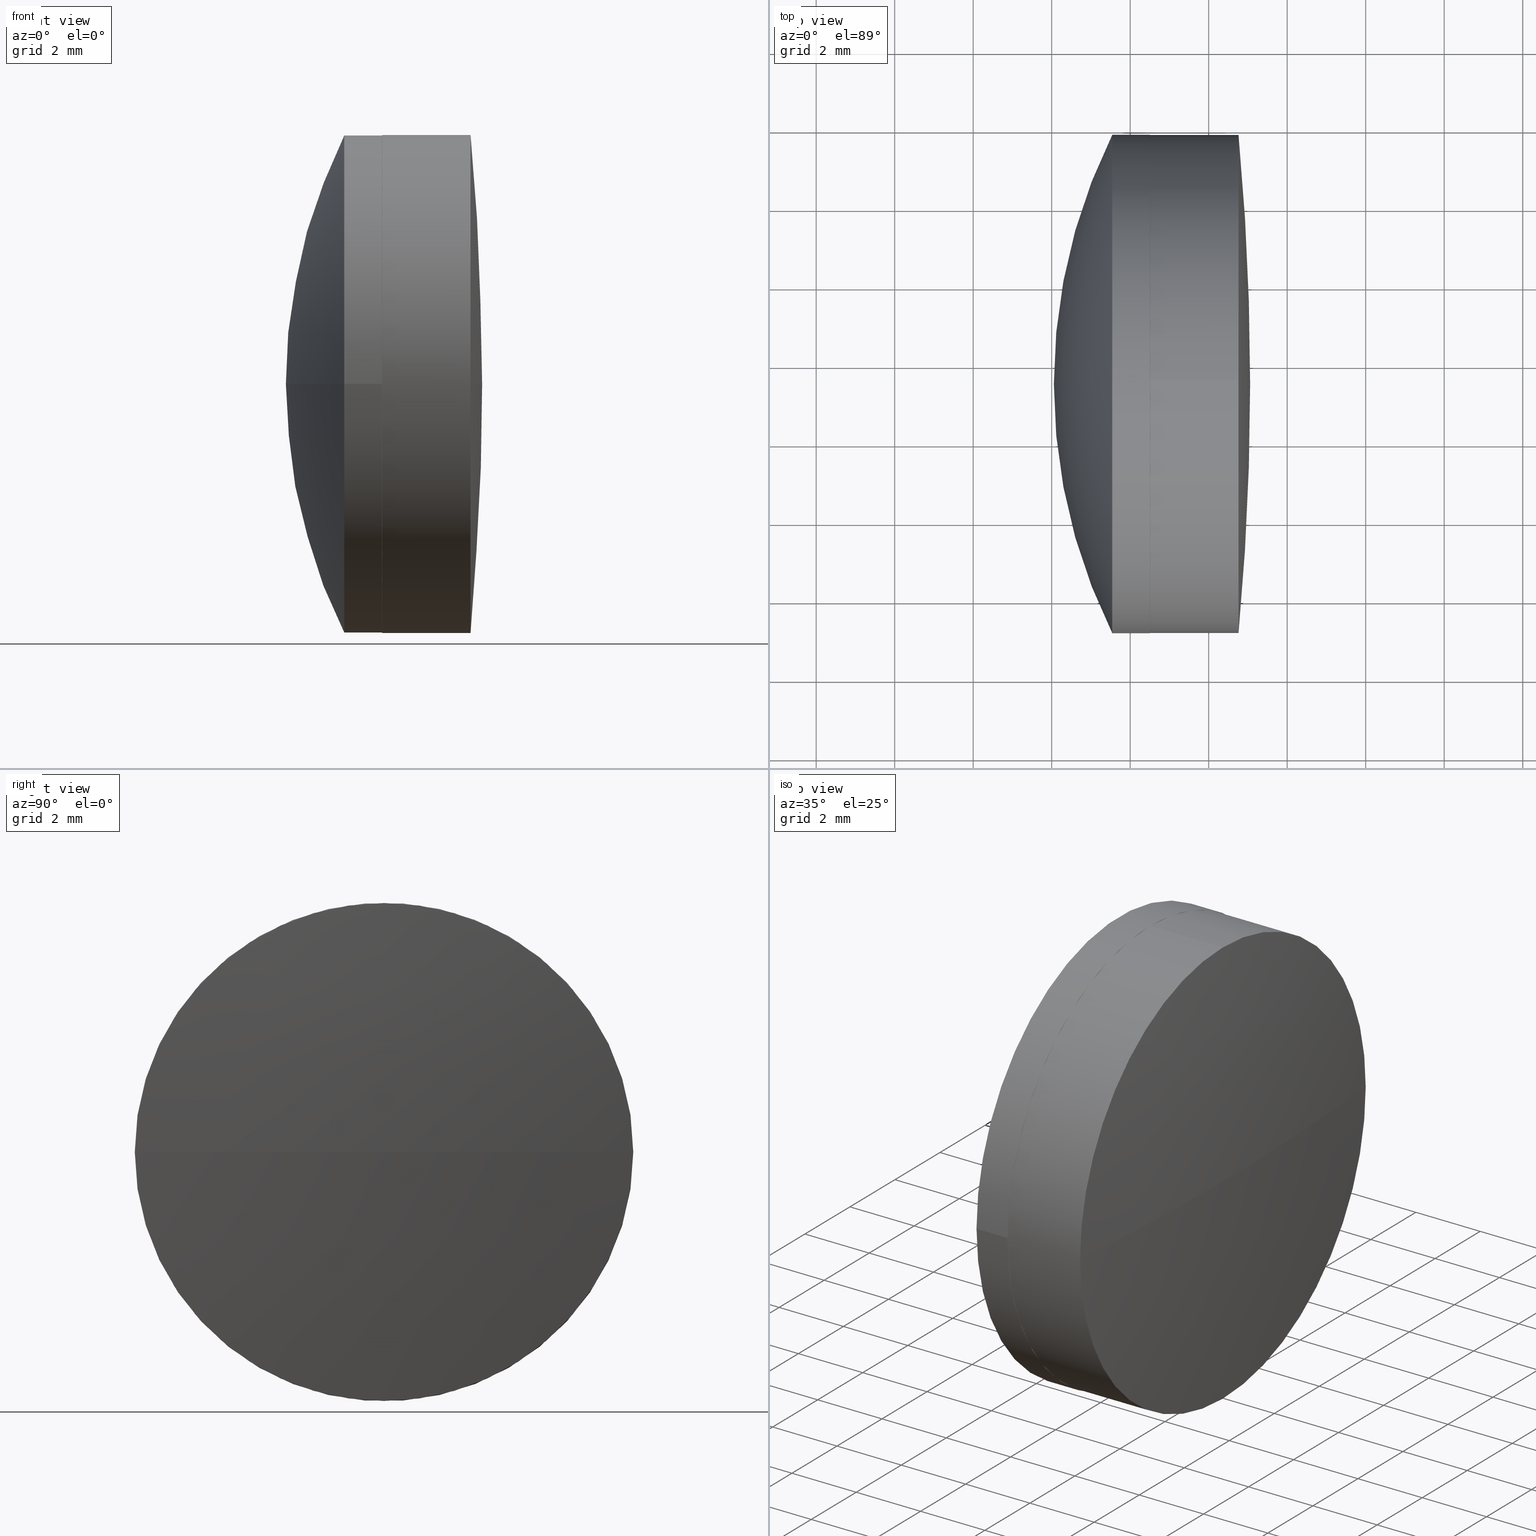
[diagram: canonical four-view strip — front | top / right | iso, engineering-drawing reading convention]
A machine part, canonical four-view strip (front | top / right | iso — engineering-drawing reading convention). The complete STEP part file that produces these views, byte-faithful:
ISO-10303-21;
HEADER;
FILE_DESCRIPTION (( 'STEP AP203' ),
    '1' );
FILE_NAME ('װ����1.STEP',
    '2024-05-11T01:40:45',
    ( '' ),
    ( '' ),
    'SwSTEP 2.0',
    'SolidWorks 2020',
    '' );
FILE_SCHEMA (( 'CONFIG_CONTROL_DESIGN' ));
ENDSEC;

DATA;
#1 = APPROVAL_DATE_TIME ( #147, #381 ) ;
#2 = PERSON_AND_ORGANIZATION_ROLE ( 'creator' ) ;
#3 = CC_DESIGN_APPROVAL ( #290, ( #596 ) ) ;
#4 = ORIENTED_EDGE ( 'NONE', *, *, #421, .T. ) ;
#5 = CLOSED_SHELL ( 'NONE', ( #117, #189, #521, #543, #253, #373 ) ) ;
#6 = PERSON_AND_ORGANIZATION_ROLE ( 'creator' ) ;
#7 = APPROVAL ( #463, 'δָ��' ) ;
#8 = APPROVAL ( #143, 'UNKNOWN' ) ;
#9 = SHAPE_REPRESENTATION_RELATIONSHIP ( 'NONE' , 'NONE' ,  #80, #292 ) ;
#10 = EDGE_LOOP ( 'NONE', ( #368, #64, #112, #502 ) ) ;
#11 = DIRECTION ( 'NONE',  ( -1.000000000000000000, -0.000000000000000000, -0.000000000000000000 ) ) ;
#12 = CALENDAR_DATE ( 2024, 11, 5 ) ;
#13 = APPROVAL_ROLE ( '' ) ;
#14 = ORIENTED_EDGE ( 'NONE', *, *, #154, .F. ) ;
#15 = LINE ( 'NONE', #168, #342 ) ;
#16 = COORDINATED_UNIVERSAL_TIME_OFFSET ( 8, 0, .AHEAD. ) ;
#17 = SECURITY_CLASSIFICATION ( '', '', #408 ) ;
#18 = PERSON_AND_ORGANIZATION ( #258, #41 ) ;
#19 = ORIENTED_EDGE ( 'NONE', *, *, #594, .F. ) ;
#20 = EDGE_CURVE ( 'NONE', #605, #71, #90, .T. ) ;
#21 = CIRCLE ( 'NONE', #128, 13.76000000000000156 ) ;
#22 = APPROVAL_ROLE ( '' ) ;
#23 = CC_DESIGN_PERSON_AND_ORGANIZATION_ASSIGNMENT ( #115, #610, ( #480 ) ) ;
#24 = CALENDAR_DATE ( 2024, 11, 5 ) ;
#25 = VERTEX_POINT ( 'NONE', #234 ) ;
#26 = PERSON_AND_ORGANIZATION_ROLE ( 'design_owner' ) ;
#27 = CYLINDRICAL_SURFACE ( 'NONE', #363, 6.349999999999993427 ) ;
#28 = ADVANCED_FACE ( 'NONE', ( #581 ), #125, .T. ) ;
#29 = LOCAL_TIME ( 9, 40, 45.00000000000000000, #94 ) ;
#30 = FACE_OUTER_BOUND ( 'NONE', #476, .T. ) ;
#31 = CARTESIAN_POINT ( 'NONE',  ( -2.000000000000007105, -6.349999999999966782, 0.000000000000000000 ) ) ;
#32 = CARTESIAN_POINT ( 'NONE',  ( -2.549259475138383468, 0.000000000000000000, 0.000000000000000000 ) ) ;
#33 = DIRECTION ( 'NONE',  ( 2.521400401129079689E-16, 1.000000000000000000, 0.000000000000000000 ) ) ;
#34 = CIRCLE ( 'NONE', #84, 14.28999999999999027 ) ;
#35 = APPLICATION_CONTEXT ( 'configuration controlled 3d designs of mechanical parts and assemblies' ) ;
#36 = ORIENTED_EDGE ( 'NONE', *, *, #53, .T. ) ;
#37 = FACE_OUTER_BOUND ( 'NONE', #620, .T. ) ;
#38 = CARTESIAN_POINT ( 'NONE',  ( -11.76000000000000156, 0.000000000000000000, 0.000000000000000000 ) ) ;
#39 = CARTESIAN_POINT ( 'NONE',  ( 0.4471741201639185537, 2.651846554929480922E-14, 0.000000000000000000 ) ) ;
#40 = DIRECTION ( 'NONE',  ( 1.000000000000000000, 0.000000000000000000, 0.000000000000000000 ) ) ;
#41 = ORGANIZATION ( 'δָ��', 'δָ��', '' ) ;
#42 = PRODUCT_DEFINITION ( 'δ֪', '', #126, #337 ) ;
#43 = PERSON_AND_ORGANIZATION ( #378, #79 ) ;
#44 = CARTESIAN_POINT ( 'NONE',  ( -0.2951002634660471191, 0.000000000000000000, 0.000000000000000000 ) ) ;
#45 = COORDINATED_UNIVERSAL_TIME_OFFSET ( 8, 0, .AHEAD. ) ;
#46 = CARTESIAN_POINT ( 'NONE',  ( -2.000000000000003553, 6.350000000000020961, 7.776507174585685260E-16 ) ) ;
#47 = ADVANCED_FACE ( 'NONE', ( #430 ), #121, .T. ) ;
#48 = APPROVAL_ROLE ( '' ) ;
#49 = CC_DESIGN_APPROVAL ( #392, ( #17 ) ) ;
#50 = AXIS2_PLACEMENT_3D ( 'NONE', #181, #77, #334 ) ;
#51 = DATE_TIME_ROLE ( 'classification_date' ) ;
#52 = AXIS2_PLACEMENT_3D ( 'NONE', #398, #588, #139 ) ;
#53 = EDGE_CURVE ( 'NONE', #473, #71, #344, .T. ) ;
#54 = COORDINATED_UNIVERSAL_TIME_OFFSET ( 8, 0, .AHEAD. ) ;
#55 = LOCAL_TIME ( 9, 40, 45.00000000000000000, #193 ) ;
#56 = DATE_AND_TIME ( #243, #630 ) ;
#57 = DATE_AND_TIME ( #503, #509 ) ;
#58 = CC_DESIGN_PERSON_AND_ORGANIZATION_ASSIGNMENT ( #263, #406, ( #351 ) ) ;
#59 = ORIENTED_EDGE ( 'NONE', *, *, #421, .F. ) ;
#60 = CIRCLE ( 'NONE', #137, 6.349999999999994316 ) ;
#61 = CIRCLE ( 'NONE', #257, 6.343139272828734576 ) ;
#62 = PERSON_AND_ORGANIZATION_ROLE ( 'creator' ) ;
#63 = PERSON_AND_ORGANIZATION ( #258, #41 ) ;
#64 = ORIENTED_EDGE ( 'NONE', *, *, #232, .T. ) ;
#65 = APPROVAL_DATE_TIME ( #57, #390 ) ;
#66 = ORIENTED_EDGE ( 'NONE', *, *, #367, .T. ) ;
#67 = APPROVAL_ROLE ( '' ) ;
#68 = CC_DESIGN_DATE_AND_TIME_ASSIGNMENT ( #312, #362, ( #17 ) ) ;
#69 = APPROVAL_PERSON_ORGANIZATION ( #614, #392, #22 ) ;
#70 = CALENDAR_DATE ( 2024, 11, 5 ) ;
#71 = VERTEX_POINT ( 'NONE', #130 ) ;
#72 = AXIS2_PLACEMENT_3D ( 'NONE', #372, #281, #83 ) ;
#73 = CARTESIAN_POINT ( 'NONE',  ( -68.31999999999999318, 0.000000000000000000, 0.000000000000000000 ) ) ;
#74 = PERSON_AND_ORGANIZATION_ROLE ( 'classification_officer' ) ;
#75 = EDGE_CURVE ( 'NONE', #449, #179, #61, .T. ) ;
#76 = ORIENTED_EDGE ( 'NONE', *, *, #546, .F. ) ;
#77 = DIRECTION ( 'NONE',  ( -1.000000000000000000, -0.000000000000000000, -0.000000000000000000 ) ) ;
#78 = FACE_OUTER_BOUND ( 'NONE', #561, .T. ) ;
#79 = ORGANIZATION ( 'NAUO-ORG1', 'UNSPECIFIED', 'UNSPECIFIED' ) ;
#80 = SHAPE_REPRESENTATION ( '145270b', ( #577 ), #491 ) ;
#81 = DIRECTION ( 'NONE',  ( 0.000000000000000000, 1.000000000000000000, 0.000000000000000000 ) ) ;
#82 = CARTESIAN_POINT ( 'NONE',  ( -0.2951002634660471191, 0.000000000000000000, 0.000000000000000000 ) ) ;
#83 = DIRECTION ( 'NONE',  ( 0.000000000000000000, 0.000000000000000000, 1.000000000000000000 ) ) ;
#84 = AXIS2_PLACEMENT_3D ( 'NONE', #287, #482, #40 ) ;
#85 = APPROVAL_STATUS ( 'not_yet_approved' ) ;
#86 = CARTESIAN_POINT ( 'NONE',  ( 2.000000000000000000, -2.619374396201648742E-15, 0.000000000000000000 ) ) ;
#87 = CARTESIAN_POINT ( 'NONE',  ( -2.549259475138383468, 6.343139272828733688, 0.000000000000000000 ) ) ;
#88 = CC_DESIGN_DATE_AND_TIME_ASSIGNMENT ( #269, #219, ( #42 ) ) ;
#89 = CARTESIAN_POINT ( 'NONE',  ( 0.000000000000000000, 0.000000000000000000, 0.000000000000000000 ) ) ;
#90 = CIRCLE ( 'NONE', #452, 6.349999999999994316 ) ;
#91 = APPROVAL_STATUS ( 'not_yet_approved' ) ;
#92 = CARTESIAN_POINT ( 'NONE',  ( 12.28999999999998849, 0.000000000000000000, 0.000000000000000000 ) ) ;
#93 = DIRECTION ( 'NONE',  ( 0.000000000000000000, 0.000000000000000000, 1.000000000000000000 ) ) ;
#94 = COORDINATED_UNIVERSAL_TIME_OFFSET ( 8, 0, .AHEAD. ) ;
#95 = ORGANIZATION ( 'NAUO-ORG2', 'UNSPECIFIED', 'UNSPECIFIED' ) ;
#96 =( NAMED_UNIT ( * ) SI_UNIT ( $, .STERADIAN. ) SOLID_ANGLE_UNIT ( ) );
#97 = CALENDAR_DATE ( 2024, 11, 5 ) ;
#98 = CC_DESIGN_APPROVAL ( #565, ( #42 ) ) ;
#99 = AXIS2_PLACEMENT_3D ( 'NONE', #336, #122, #169 ) ;
#100 = APPROVAL_DATE_TIME ( #440, #171 ) ;
#101 = PRODUCT ( '145270b', '145270b', '', ( #308 ) ) ;
#102 = DATE_AND_TIME ( #531, #29 ) ;
#103 = CC_DESIGN_PERSON_AND_ORGANIZATION_ASSIGNMENT ( #553, #6, ( #351 ) ) ;
#104 = CALENDAR_DATE ( 2024, 11, 5 ) ;
#105 = COORDINATED_UNIVERSAL_TIME_OFFSET ( 8, 0, .AHEAD. ) ;
#106 = ORIENTED_EDGE ( 'NONE', *, *, #352, .T. ) ;
#107 = APPROVAL_ROLE ( '' ) ;
#108 = ORIENTED_EDGE ( 'NONE', *, *, #180, .F. ) ;
#109 = CARTESIAN_POINT ( 'NONE',  ( -2.549259475138383468, -6.343139272828733688, -7.768105207015577674E-16 ) ) ;
#110 = DATE_AND_TIME ( #210, #384 ) ;
#111 = PERSON_AND_ORGANIZATION ( #258, #41 ) ;
#112 = ORIENTED_EDGE ( 'NONE', *, *, #439, .F. ) ;
#113 = PERSON_AND_ORGANIZATION ( #258, #41 ) ;
#114 = APPLICATION_CONTEXT ( 'configuration controlled 3d designs of mechanical parts and assemblies' ) ;
#115 = PERSON_AND_ORGANIZATION ( #258, #41 ) ;
#116 = APPROVAL_DATE_TIME ( #417, #290 ) ;
#117 = ADVANCED_FACE ( 'NONE', ( #78 ), #325, .T. ) ;
#118 = EDGE_LOOP ( 'NONE', ( #601, #627, #150, #461, #371, #59 ) ) ;
#119 = AXIS2_PLACEMENT_3D ( 'NONE', #255, #400, #591 ) ;
#120 = CARTESIAN_POINT ( 'NONE',  ( 0.000000000000000000, 4.183393465887357773E-15, 0.000000000000000000 ) ) ;
#121 = SPHERICAL_SURFACE ( 'NONE', #626, 14.28999999999999027 ) ;
#122 = DIRECTION ( 'NONE',  ( -0.000000000000000000, 0.000000000000000000, -1.000000000000000000 ) ) ;
#123 = DIRECTION ( 'NONE',  ( 0.000000000000000000, 0.000000000000000000, -1.000000000000000000 ) ) ;
#124 = CARTESIAN_POINT ( 'NONE',  ( -1.000000000000000000, 7.768105207015588521E-16, -6.343139272828741682 ) ) ;
#125 = SPHERICAL_SURFACE ( 'NONE', #532, 14.28999999999999027 ) ;
#126 = PRODUCT_DEFINITION_FORMATION_WITH_SPECIFIED_SOURCE ( '�κ�', '', #480, .NOT_KNOWN. ) ;
#127 = CARTESIAN_POINT ( 'NONE',  ( -11.76000000000000156, 0.000000000000000000, 0.000000000000000000 ) ) ;
#128 = AXIS2_PLACEMENT_3D ( 'NONE', #38, #383, #286 ) ;
#129 = AXIS2_PLACEMENT_3D ( 'NONE', #206, #190, #133 ) ;
#130 = CARTESIAN_POINT ( 'NONE',  ( 0.4471741201639202190, 6.350000000000020961, 0.000000000000000000 ) ) ;
#131 = CARTESIAN_POINT ( 'NONE',  ( -1.000000000000000888, 8.425569978133789158E-16, 0.000000000000000000 ) ) ;
#132 = VERTEX_POINT ( 'NONE', #526 ) ;
#133 = DIRECTION ( 'NONE',  ( 0.000000000000000000, 1.000000000000000000, 1.224646799147353207E-16 ) ) ;
#134 = LOCAL_TIME ( 9, 40, 45.00000000000000000, #402 ) ;
#135 = ADVANCED_FACE ( 'NONE', ( #327 ), #331, .T. ) ;
#136 = ITEM_DEFINED_TRANSFORMATION ( 'NONE', 'NONE', #450,  #577 ) ;
#137 = AXIS2_PLACEMENT_3D ( 'NONE', #412, #556, #478 ) ;
#138 = CARTESIAN_POINT ( 'NONE',  ( -0.5116248968636686323, 2.675969348662028730E-14, 0.000000000000000000 ) ) ;
#139 = DIRECTION ( 'NONE',  ( 1.000000000000000000, 0.000000000000000000, 0.000000000000000000 ) ) ;
#140 = CC_DESIGN_DATE_AND_TIME_ASSIGNMENT ( #241, #456, ( #472 ) ) ;
#141 = PERSON_AND_ORGANIZATION_ROLE ( 'classification_officer' ) ;
#142 = DIRECTION ( 'NONE',  ( -2.561107494060249109E-16, -1.000000000000000000, 0.000000000000000000 ) ) ;
#143 = APPROVAL_STATUS ( 'not_yet_approved' ) ;
#144 = CC_DESIGN_SECURITY_CLASSIFICATION ( #17, ( #126 ) ) ;
#145 = AXIS2_PLACEMENT_3D ( 'NONE', #233, #516, #230 ) ;
#146 = CC_DESIGN_PERSON_AND_ORGANIZATION_ASSIGNMENT ( #618, #603, ( #101 ) ) ;
#147 = DATE_AND_TIME ( #191, #622 ) ;
#148 = PRODUCT_DEFINITION ( 'δ֪', '', #351, #198 ) ;
#149 = APPROVAL_STATUS ( 'not_yet_approved' ) ;
#150 = ORIENTED_EDGE ( 'NONE', *, *, #594, .T. ) ;
#151 = APPLICATION_PROTOCOL_DEFINITION ( 'international standard', 'config_control_design', 1994, #544 ) ;
#152 = CC_DESIGN_SECURITY_CLASSIFICATION ( #309, ( #646 ) ) ;
#153 = ORIENTED_EDGE ( 'NONE', *, *, #396, .F. ) ;
#154 = EDGE_CURVE ( 'NONE', #458, #407, #443, .T. ) ;
#155 = DATE_AND_TIME ( #370, #634 ) ;
#156 = APPLICATION_CONTEXT ( 'configuration controlled 3d designs of mechanical parts and assemblies' ) ;
#157 = DATE_AND_TIME ( #409, #300 ) ;
#158 = EDGE_LOOP ( 'NONE', ( #319, #220, #611, #153, #162, #357 ) ) ;
#159 = AXIS2_PLACEMENT_3D ( 'NONE', #188, #391, #530 ) ;
#160 = DATE_AND_TIME ( #205, #321 ) ;
#161 = COORDINATED_UNIVERSAL_TIME_OFFSET ( 8, 0, .AHEAD. ) ;
#162 = ORIENTED_EDGE ( 'NONE', *, *, #75, .F. ) ;
#163 = SHAPE_REPRESENTATION ( '145270a', ( #577 ), #467 ) ;
#164 = APPROVAL_DATE_TIME ( #110, #392 ) ;
#165 = PERSON_AND_ORGANIZATION ( #607, #95 ) ;
#166 = ORIENTED_EDGE ( 'NONE', *, *, #20, .F. ) ;
#167 = APPROVAL_PERSON_ORGANIZATION ( #221, #562, #48 ) ;
#168 = CARTESIAN_POINT ( 'NONE',  ( -1.000000000000000000, 0.000000000000000000, 6.343139272828741682 ) ) ;
#169 = DIRECTION ( 'NONE',  ( 0.000000000000000000, 1.000000000000000000, 0.000000000000000000 ) ) ;
#170 = DIRECTION ( 'NONE',  ( -0.000000000000000000, 0.000000000000000000, -1.000000000000000000 ) ) ;
#171 = APPROVAL ( #442, 'δָ��' ) ;
#172 =( GEOMETRIC_REPRESENTATION_CONTEXT ( 3 ) GLOBAL_UNCERTAINTY_ASSIGNED_CONTEXT ( ( #580 ) ) GLOBAL_UNIT_ASSIGNED_CONTEXT ( ( #547, #310, #313 ) ) REPRESENTATION_CONTEXT ( 'NONE', 'WORKASPACE' ) );
#173 = DIRECTION ( 'NONE',  ( 0.000000000000000000, 0.000000000000000000, 1.000000000000000000 ) ) ;
#174 = SPHERICAL_SURFACE ( 'NONE', #511, 13.76000000000000156 ) ;
#175 = CLOSED_SHELL ( 'NONE', ( #202, #570, #47, #28, #578, #135 ) ) ;
#176 = DIRECTION ( 'NONE',  ( -1.000000000000000000, 2.515938513092316790E-16, -0.000000000000000000 ) ) ;
#177 = SPHERICAL_SURFACE ( 'NONE', #575, 13.76000000000000156 ) ;
#178 = APPROVAL_PERSON_ORGANIZATION ( #165, #187, #264 ) ;
#179 = VERTEX_POINT ( 'NONE', #87 ) ;
#180 = EDGE_CURVE ( 'NONE', #410, #132, #34, .T. ) ;
#181 = CARTESIAN_POINT ( 'NONE',  ( -0.2951002634660471191, 0.000000000000000000, 0.000000000000000000 ) ) ;
#182 = CARTESIAN_POINT ( 'NONE',  ( 12.28999999999998849, 0.000000000000000000, 0.000000000000000000 ) ) ;
#183 = APPROVAL_PERSON_ORGANIZATION ( #254, #7, #67 ) ;
#184 = CARTESIAN_POINT ( 'NONE',  ( -2.549259475138383468, 0.000000000000000000, 0.000000000000000000 ) ) ;
#185 = DIRECTION ( 'NONE',  ( -1.000000000000000000, -0.000000000000000000, -0.000000000000000000 ) ) ;
#186 = AXIS2_PLACEMENT_3D ( 'NONE', #227, #631, #81 ) ;
#187 = APPROVAL ( #91, 'UNKNOWN' ) ;
#188 = CARTESIAN_POINT ( 'NONE',  ( -1.000000000000000000, 0.000000000000000000, 0.000000000000000000 ) ) ;
#189 = ADVANCED_FACE ( 'NONE', ( #434 ), #636, .T. ) ;
#190 = DIRECTION ( 'NONE',  ( 0.000000000000000000, 1.224646799147353207E-16, -1.000000000000000000 ) ) ;
#191 = CALENDAR_DATE ( 2024, 11, 5 ) ;
#192 = CC_DESIGN_APPROVAL ( #8, ( #309 ) ) ;
#193 = COORDINATED_UNIVERSAL_TIME_OFFSET ( 8, 0, .AHEAD. ) ;
#194 = AXIS2_PLACEMENT_3D ( 'NONE', #426, #176, #519 ) ;
#195 = PERSON_AND_ORGANIZATION ( #258, #41 ) ;
#196 = LINE ( 'NONE', #46, #552 ) ;
#197 =( NAMED_UNIT ( * ) SI_UNIT ( $, .STERADIAN. ) SOLID_ANGLE_UNIT ( ) );
#198 = DESIGN_CONTEXT ( 'detailed design', #277, 'design' ) ;
#199 = SHAPE_DEFINITION_REPRESENTATION ( #641, #80 ) ;
#200 = PRODUCT ( '145270a', '145270a', '', ( #608 ) ) ;
#201 = SECURITY_CLASSIFICATION_LEVEL ( 'unclassified' ) ;
#202 = ADVANCED_FACE ( 'NONE', ( #276 ), #27, .T. ) ;
#203 = AXIS2_PLACEMENT_3D ( 'NONE', #437, #637, #558 ) ;
#204 = ORIENTED_EDGE ( 'NONE', *, *, #396, .T. ) ;
#205 = CALENDAR_DATE ( 2024, 11, 5 ) ;
#206 = CARTESIAN_POINT ( 'NONE',  ( -14.75999999999999801, 0.000000000000000000, 0.000000000000000000 ) ) ;
#207 = ORIENTED_EDGE ( 'NONE', *, *, #528, .T. ) ;
#208 = SHAPE_REPRESENTATION ( 'װ����1', ( #203, #450, #119 ), #172 ) ;
#209 = CARTESIAN_POINT ( 'NONE',  ( -0.2951002634660471191, -6.343139272828758557, -7.768105207015609228E-16 ) ) ;
#210 = CALENDAR_DATE ( 2024, 11, 5 ) ;
#211 = APPROVAL_STATUS ( 'not_yet_approved' ) ;
#212 = ORIENTED_EDGE ( 'NONE', *, *, #439, .T. ) ;
#213 = PERSON_AND_ORGANIZATION ( #258, #41 ) ;
#214 = CC_DESIGN_APPROVAL ( #369, ( #126 ) ) ;
#215 = MECHANICAL_CONTEXT ( 'NONE', #156, 'mechanical' ) ;
#216 = AXIS2_PLACEMENT_3D ( 'NONE', #483, #422, #623 ) ;
#217 = EDGE_LOOP ( 'NONE', ( #311, #207, #508 ) ) ;
#218 = DATE_TIME_ROLE ( 'classification_date' ) ;
#219 = DATE_TIME_ROLE ( 'creation_date' ) ;
#220 = ORIENTED_EDGE ( 'NONE', *, *, #546, .T. ) ;
#221 = PERSON_AND_ORGANIZATION ( #258, #41 ) ;
#222 = DIRECTION ( 'NONE',  ( -1.000000000000000000, -0.000000000000000000, -0.000000000000000000 ) ) ;
#223 = DIRECTION ( 'NONE',  ( 2.521400401129079689E-16, 1.000000000000000000, 0.000000000000000000 ) ) ;
#224 = CC_DESIGN_DATE_AND_TIME_ASSIGNMENT ( #160, #218, ( #596 ) ) ;
#225 = CARTESIAN_POINT ( 'NONE',  ( -2.000000000000005329, 2.713415951101113115E-14, 0.000000000000000000 ) ) ;
#226 = CC_DESIGN_SECURITY_CLASSIFICATION ( #517, ( #529 ) ) ;
#227 = CARTESIAN_POINT ( 'NONE',  ( -14.75999999999999801, 0.000000000000000000, 0.000000000000000000 ) ) ;
#228 = DIRECTION ( 'NONE',  ( -1.000000000000000000, 2.515938513092316790E-16, -0.000000000000000000 ) ) ;
#229 = AXIS2_PLACEMENT_3D ( 'NONE', #184, #387, #272 ) ;
#230 = DIRECTION ( 'NONE',  ( 0.000000000000000000, 1.000000000000000000, 0.000000000000000000 ) ) ;
#231 = DIRECTION ( 'NONE',  ( 0.000000000000000000, 0.000000000000000000, 1.000000000000000000 ) ) ;
#232 = EDGE_CURVE ( 'NONE', #71, #410, #196, .T. ) ;
#233 = CARTESIAN_POINT ( 'NONE',  ( -14.75999999999999801, 0.000000000000000000, 0.000000000000000000 ) ) ;
#234 = CARTESIAN_POINT ( 'NONE',  ( -0.2951002634660471191, 7.768105207015596409E-16, -6.343139272828748787 ) ) ;
#235 = CARTESIAN_POINT ( 'NONE',  ( -14.75999999999999801, 0.000000000000000000, 0.000000000000000000 ) ) ;
#236 = EDGE_CURVE ( 'NONE', #453, #132, #642, .T. ) ;
#237 = CC_DESIGN_APPROVAL ( #390, ( #351 ) ) ;
#238 = AXIS2_PLACEMENT_3D ( 'NONE', #573, #185, #579 ) ;
#239 = COORDINATED_UNIVERSAL_TIME_OFFSET ( 8, 0, .AHEAD. ) ;
#240 =( NAMED_UNIT ( * ) PLANE_ANGLE_UNIT ( ) SI_UNIT ( $, .RADIAN. ) );
#241 = DATE_AND_TIME ( #399, #294 ) ;
#242 = PRODUCT_DEFINITION_SHAPE ( 'NONE', 'NONE',  #42 ) ;
#243 = CALENDAR_DATE ( 2024, 11, 5 ) ;
#244 = DIRECTION ( 'NONE',  ( 3.081136046910056722E-32, 1.224646799147353207E-16, -1.000000000000000000 ) ) ;
#245 = DIRECTION ( 'NONE',  ( 1.000000000000000000, 0.000000000000000000, 0.000000000000000000 ) ) ;
#246 = CIRCLE ( 'NONE', #612, 6.343139272828748787 ) ;
#247 = AXIS2_PLACEMENT_3D ( 'NONE', #73, #376, #567 ) ;
#248 = APPROVAL_ROLE ( '' ) ;
#249 = EDGE_CURVE ( 'NONE', #410, #453, #613, .T. ) ;
#250 = CC_DESIGN_PERSON_AND_ORGANIZATION_ASSIGNMENT ( #504, #364, ( #126 ) ) ;
#251 = PERSON_AND_ORGANIZATION_ROLE ( 'creator' ) ;
#252 = APPROVAL_PERSON_ORGANIZATION ( #304, #381, #248 ) ;
#253 = ADVANCED_FACE ( 'NONE', ( #536 ), #538, .T. ) ;
#254 = PERSON_AND_ORGANIZATION ( #258, #41 ) ;
#255 = CARTESIAN_POINT ( 'NONE',  ( -109.9445019818950158, 39.48776539786612005, 0.000000000000000000 ) ) ;
#256 = EDGE_LOOP ( 'NONE', ( #405, #36, #166 ) ) ;
#257 = AXIS2_PLACEMENT_3D ( 'NONE', #32, #382, #231 ) ;
#258 = PERSON ( 'δָ��', 'δָ��', 'δָ��', ('δָ��'), ('δָ��'), ('δָ��') ) ;
#259 = PERSON_AND_ORGANIZATION ( #258, #41 ) ;
#260 = APPLICATION_PROTOCOL_DEFINITION ( 'international standard', 'config_control_design', 1994, #156 ) ;
#261 = ORIENTED_EDGE ( 'NONE', *, *, #298, .F. ) ;
#262 =( REPRESENTATION_RELATIONSHIP ('NONE','NONE', #208, #80 ) REPRESENTATION_RELATIONSHIP_WITH_TRANSFORMATION ( #136 )SHAPE_REPRESENTATION_RELATIONSHIP( ) );
#263 = PERSON_AND_ORGANIZATION ( #258, #41 ) ;
#264 = APPROVAL_ROLE ( '' ) ;
#265 = APPROVAL_ROLE ( '' ) ;
#266 = ORIENTED_EDGE ( 'NONE', *, *, #347, .T. ) ;
#267 = SECURITY_CLASSIFICATION_LEVEL ( 'unclassified' ) ;
#268 = CC_DESIGN_APPROVAL ( #7, ( #148 ) ) ;
#269 = DATE_AND_TIME ( #24, #574 ) ;
#270 = CIRCLE ( 'NONE', #238, 6.343139272828748787 ) ;
#271 = EDGE_LOOP ( 'NONE', ( #551, #266, #66, #477 ) ) ;
#272 = DIRECTION ( 'NONE',  ( 0.000000000000000000, 0.000000000000000000, 1.000000000000000000 ) ) ;
#273 = CC_DESIGN_PERSON_AND_ORGANIZATION_ASSIGNMENT ( #454, #459, ( #596 ) ) ;
#274 = COORDINATED_UNIVERSAL_TIME_OFFSET ( 8, 0, .AHEAD. ) ;
#275 = CC_DESIGN_PERSON_AND_ORGANIZATION_ASSIGNMENT ( #113, #26, ( #200 ) ) ;
#276 = FACE_OUTER_BOUND ( 'NONE', #10, .T. ) ;
#277 = APPLICATION_CONTEXT ( 'configuration controlled 3d designs of mechanical parts and assemblies' ) ;
#278 = DIRECTION ( 'NONE',  ( -1.000000000000000000, -0.000000000000000000, -0.000000000000000000 ) ) ;
#279 = DIRECTION ( 'NONE',  ( 0.000000000000000000, 0.000000000000000000, -1.000000000000000000 ) ) ;
#280 = LOCAL_TIME ( 9, 40, 45.00000000000000000, #239 ) ;
#281 = DIRECTION ( 'NONE',  ( -1.000000000000000000, -0.000000000000000000, -0.000000000000000000 ) ) ;
#282 = EDGE_LOOP ( 'NONE', ( #317, #468, #108 ) ) ;
#283 = DIRECTION ( 'NONE',  ( -1.000000000000000000, 2.515938513092316790E-16, -0.000000000000000000 ) ) ;
#284 = DIRECTION ( 'NONE',  ( 1.000000000000000000, 0.000000000000000000, 0.000000000000000000 ) ) ;
#285 = ORIENTED_EDGE ( 'NONE', *, *, #180, .T. ) ;
#286 = DIRECTION ( 'NONE',  ( 0.000000000000000000, 1.000000000000000000, 1.224646799147353207E-16 ) ) ;
#287 = CARTESIAN_POINT ( 'NONE',  ( 12.28999999999998849, 0.000000000000000000, 0.000000000000000000 ) ) ;
#288 = CC_DESIGN_APPROVAL ( #187, ( #472 ) ) ;
#289 = SHAPE_REPRESENTATION_RELATIONSHIP ( 'NONE' , 'NONE' ,  #163, #515 ) ;
#290 = APPROVAL ( #413, 'δָ��' ) ;
#291 = AXIS2_PLACEMENT_3D ( 'NONE', #632, #569, #338 ) ;
#292 = ADVANCED_BREP_SHAPE_REPRESENTATION ( '', ( #595, #577 ), #491 ) ;
#293 = PERSON_AND_ORGANIZATION ( #258, #41 ) ;
#294 = LOCAL_TIME ( 9, 40, 45.00000000000000000, #45 ) ;
#295 = SECURITY_CLASSIFICATION_LEVEL ( 'unclassified' ) ;
#296 = CARTESIAN_POINT ( 'NONE',  ( -1.000000000000000000, 0.000000000000000000, 0.000000000000000000 ) ) ;
#297 = DIRECTION ( 'NONE',  ( 0.000000000000000000, 0.000000000000000000, 1.000000000000000000 ) ) ;
#298 = EDGE_CURVE ( 'NONE', #416, #407, #425, .T. ) ;
#299 = DATE_TIME_ROLE ( 'creation_date' ) ;
#300 = LOCAL_TIME ( 9, 40, 45.00000000000000000, #466 ) ;
#301 = DIRECTION ( 'NONE',  ( -1.000000000000000000, 2.515938513092316790E-16, -0.000000000000000000 ) ) ;
#302 = PRODUCT_RELATED_PRODUCT_CATEGORY ( 'detail', '', ( #480 ) ) ;
#303 = CIRCLE ( 'NONE', #72, 6.343139272828734576 ) ;
#304 = PERSON_AND_ORGANIZATION ( #258, #41 ) ;
#305 = CC_DESIGN_PERSON_AND_ORGANIZATION_ASSIGNMENT ( #537, #141, ( #517 ) ) ;
#306 = EDGE_CURVE ( 'NONE', #458, #449, #15, .T. ) ;
#307 = APPROVAL_DATE_TIME ( #56, #187 ) ;
#308 = MECHANICAL_CONTEXT ( 'NONE', #114, 'mechanical' ) ;
#309 = SECURITY_CLASSIFICATION ( '', '', #535 ) ;
#310 =( NAMED_UNIT ( * ) PLANE_ANGLE_UNIT ( ) SI_UNIT ( $, .RADIAN. ) );
#311 = ORIENTED_EDGE ( 'NONE', *, *, #53, .F. ) ;
#312 = DATE_AND_TIME ( #469, #540 ) ;
#313 =( NAMED_UNIT ( * ) SI_UNIT ( $, .STERADIAN. ) SOLID_ANGLE_UNIT ( ) );
#314 = ORIENTED_EDGE ( 'NONE', *, *, #539, .T. ) ;
#315 = PERSON_AND_ORGANIZATION ( #258, #41 ) ;
#316 = PERSON_AND_ORGANIZATION_ROLE ( 'design_supplier' ) ;
#317 = ORIENTED_EDGE ( 'NONE', *, *, #249, .T. ) ;
#318 = SHAPE_DEFINITION_REPRESENTATION ( #444, #163 ) ;
#319 = ORIENTED_EDGE ( 'NONE', *, *, #154, .T. ) ;
#320 = COORDINATED_UNIVERSAL_TIME_OFFSET ( 8, 0, .AHEAD. ) ;
#321 = LOCAL_TIME ( 9, 40, 45.00000000000000000, #557 ) ;
#322 = VERTEX_POINT ( 'NONE', #209 ) ;
#323 = CC_DESIGN_PERSON_AND_ORGANIZATION_ASSIGNMENT ( #492, #447, ( #529 ) ) ;
#324 = SPHERICAL_SURFACE ( 'NONE', #99, 68.31999999999999318 ) ;
#325 = SPHERICAL_SURFACE ( 'NONE', #475, 68.31999999999999318 ) ;
#326 = DIRECTION ( 'NONE',  ( -1.000000000000000000, 2.515938513092316790E-16, -0.000000000000000000 ) ) ;
#327 = FACE_OUTER_BOUND ( 'NONE', #271, .T. ) ;
#328 = CARTESIAN_POINT ( 'NONE',  ( -0.2951002634660471191, 0.000000000000000000, 6.343139272828748787 ) ) ;
#329 = APPROVAL_PERSON_ORGANIZATION ( #359, #290, #560 ) ;
#330 = CC_DESIGN_PERSON_AND_ORGANIZATION_ASSIGNMENT ( #165, #494, ( #472 ) ) ;
#331 = CYLINDRICAL_SURFACE ( 'NONE', #194, 6.349999999999993427 ) ;
#332 = VECTOR ( 'NONE', #283, 1000.000000000000000 ) ;
#333 = AXIS2_PLACEMENT_3D ( 'NONE', #296, #222, #173 ) ;
#334 = DIRECTION ( 'NONE',  ( 0.000000000000000000, 0.000000000000000000, 1.000000000000000000 ) ) ;
#335 = CIRCLE ( 'NONE', #129, 13.75999999999999801 ) ;
#336 = CARTESIAN_POINT ( 'NONE',  ( -68.31999999999999318, 0.000000000000000000, 0.000000000000000000 ) ) ;
#337 = DESIGN_CONTEXT ( 'detailed design', #640, 'design' ) ;
#338 = DIRECTION ( 'NONE',  ( 1.000000000000000000, 0.000000000000000000, 0.000000000000000000 ) ) ;
#339 = CC_DESIGN_APPROVAL ( #562, ( #638 ) ) ;
#340 = CC_DESIGN_PERSON_AND_ORGANIZATION_ASSIGNMENT ( #195, #251, ( #529 ) ) ;
#341 = PERSON_AND_ORGANIZATION_ROLE ( 'classification_officer' ) ;
#342 = VECTOR ( 'NONE', #11, 1000.000000000000000 ) ;
#343 = DIRECTION ( 'NONE',  ( 0.000000000000000000, 0.000000000000000000, 1.000000000000000000 ) ) ;
#344 = CIRCLE ( 'NONE', #291, 13.76000000000000156 ) ;
#345 = DIRECTION ( 'NONE',  ( -1.000000000000000000, 2.515938513092316790E-16, -0.000000000000000000 ) ) ;
#346 = DIRECTION ( 'NONE',  ( -1.000000000000000000, -0.000000000000000000, -0.000000000000000000 ) ) ;
#347 = EDGE_CURVE ( 'NONE', #71, #605, #60, .T. ) ;
#348 = DATE_AND_TIME ( #597, #55 ) ;
#349 = PRODUCT_DEFINITION_SHAPE ( 'NONE', 'NONE',  #646 ) ;
#350 = APPROVAL_DATE_TIME ( #102, #8 ) ;
#351 = PRODUCT_DEFINITION_FORMATION_WITH_SPECIFIED_SOURCE ( '�κ�', '', #200, .NOT_KNOWN. ) ;
#352 = EDGE_CURVE ( 'NONE', #361, #449, #499, .T. ) ;
#353 = AXIS2_PLACEMENT_3D ( 'NONE', #235, #424, #284 ) ;
#354 = PRODUCT_DEFINITION_SHAPE ( 'NONE', 'NONE',  #647 ) ;
#355 = CALENDAR_DATE ( 2024, 11, 5 ) ;
#356 = DATE_TIME_ROLE ( 'creation_date' ) ;
#357 = ORIENTED_EDGE ( 'NONE', *, *, #306, .F. ) ;
#358 = CC_DESIGN_PERSON_AND_ORGANIZATION_ASSIGNMENT ( #293, #2, ( #638 ) ) ;
#359 = PERSON_AND_ORGANIZATION ( #258, #41 ) ;
#360 = CC_DESIGN_APPROVAL ( #171, ( #529 ) ) ;
#361 = VERTEX_POINT ( 'NONE', #109 ) ;
#362 = DATE_TIME_ROLE ( 'classification_date' ) ;
#363 = AXIS2_PLACEMENT_3D ( 'NONE', #225, #590, #587 ) ;
#364 = PERSON_AND_ORGANIZATION_ROLE ( 'creator' ) ;
#365 = ORIENTED_EDGE ( 'NONE', *, *, #236, .F. ) ;
#366 = APPLICATION_PROTOCOL_DEFINITION ( 'international standard', 'config_control_design', 1994, #35 ) ;
#367 = EDGE_CURVE ( 'NONE', #605, #453, #518, .T. ) ;
#368 = ORIENTED_EDGE ( 'NONE', *, *, #20, .T. ) ;
#369 = APPROVAL ( #211, 'δָ��' ) ;
#370 = CALENDAR_DATE ( 2024, 11, 5 ) ;
#371 = ORIENTED_EDGE ( 'NONE', *, *, #352, .F. ) ;
#372 = CARTESIAN_POINT ( 'NONE',  ( -2.549259475138383468, 0.000000000000000000, 0.000000000000000000 ) ) ;
#373 = ADVANCED_FACE ( 'NONE', ( #37 ), #324, .T. ) ;
#374 = APPROVAL_PERSON_ORGANIZATION ( #18, #565, #13 ) ;
#375 = DIRECTION ( 'NONE',  ( 2.427884501017226571E-16, 1.000000000000000000, 0.000000000000000000 ) ) ;
#376 = DIRECTION ( 'NONE',  ( -0.000000000000000000, 0.000000000000000000, 1.000000000000000000 ) ) ;
#377 = DIRECTION ( 'NONE',  ( 0.000000000000000000, 0.000000000000000000, -1.000000000000000000 ) ) ;
#378 = PERSON ( 'NAUO-PER1', 'UNSPECIFIED', 'UNSPECIFIED', ('UNSPECIFIED'), ('UNSPECIFIED'), ('UNSPECIFIED') ) ;
#379 = ORIENTED_EDGE ( 'NONE', *, *, #465, .F. ) ;
#380 = CARTESIAN_POINT ( 'NONE',  ( -0.5116248968636704086, -6.349999999999992539, -7.776507174585689205E-16 ) ) ;
#381 = APPROVAL ( #643, 'δָ��' ) ;
#382 = DIRECTION ( 'NONE',  ( -1.000000000000000000, -0.000000000000000000, -0.000000000000000000 ) ) ;
#383 = DIRECTION ( 'NONE',  ( 3.081136046910056722E-32, 1.224646799147353207E-16, -1.000000000000000000 ) ) ;
#384 = LOCAL_TIME ( 9, 40, 45.00000000000000000, #550 ) ;
#385 = ORIENTED_EDGE ( 'NONE', *, *, #75, .T. ) ;
#386 = CIRCLE ( 'NONE', #50, 6.343139272828748787 ) ;
#387 = DIRECTION ( 'NONE',  ( -1.000000000000000000, -0.000000000000000000, -0.000000000000000000 ) ) ;
#388 = CARTESIAN_POINT ( 'NONE',  ( -2.549259475138383468, 0.000000000000000000, 0.000000000000000000 ) ) ;
#389 = MANIFOLD_SOLID_BREP ( '��ת1', #175 ) ;
#390 = APPROVAL ( #149, 'δָ��' ) ;
#391 = DIRECTION ( 'NONE',  ( -1.000000000000000000, -0.000000000000000000, -0.000000000000000000 ) ) ;
#392 = APPROVAL ( #506, 'δָ��' ) ;
#393 = CARTESIAN_POINT ( 'NONE',  ( 0.4471741201639169438, -6.349999999999996092, -7.776507174585685260E-16 ) ) ;
#394 = APPROVAL_PERSON_ORGANIZATION ( #43, #8, #485 ) ;
#395 = COORDINATED_UNIVERSAL_TIME_OFFSET ( 8, 0, .AHEAD. ) ;
#396 = EDGE_CURVE ( 'NONE', #179, #523, #303, .T. ) ;
#397 = AXIS2_PLACEMENT_3D ( 'NONE', #92, #244, #446 ) ;
#398 = CARTESIAN_POINT ( 'NONE',  ( 0.000000000000000000, 0.000000000000000000, 0.000000000000000000 ) ) ;
#399 = CALENDAR_DATE ( 2024, 11, 5 ) ;
#400 = DIRECTION ( 'NONE',  ( 0.000000000000000000, 0.000000000000000000, 1.000000000000000000 ) ) ;
#401 = DATE_AND_TIME ( #355, #280 ) ;
#402 = COORDINATED_UNIVERSAL_TIME_OFFSET ( 8, 0, .AHEAD. ) ;
#403 = APPLICATION_PROTOCOL_DEFINITION ( 'international standard', 'config_control_design', 1994, #277 ) ;
#404 = PRODUCT_RELATED_PRODUCT_CATEGORY ( 'detail', '', ( #200 ) ) ;
#405 = ORIENTED_EDGE ( 'NONE', *, *, #528, .F. ) ;
#406 = PERSON_AND_ORGANIZATION_ROLE ( 'design_supplier' ) ;
#407 = VERTEX_POINT ( 'NONE', #431 ) ;
#408 = SECURITY_CLASSIFICATION_LEVEL ( 'unclassified' ) ;
#409 = CALENDAR_DATE ( 2024, 11, 5 ) ;
#410 = VERTEX_POINT ( 'NONE', #479 ) ;
#411 = LOCAL_TIME ( 9, 40, 45.00000000000000000, #415 ) ;
#412 = CARTESIAN_POINT ( 'NONE',  ( 0.4471741201639185537, 2.651846554929480922E-14, 0.000000000000000000 ) ) ;
#413 = APPROVAL_STATUS ( 'not_yet_approved' ) ;
#414 = CIRCLE ( 'NONE', #353, 13.75999999999999801 ) ;
#415 = COORDINATED_UNIVERSAL_TIME_OFFSET ( 8, 0, .AHEAD. ) ;
#416 = VERTEX_POINT ( 'NONE', #120 ) ;
#417 = DATE_AND_TIME ( #12, #564 ) ;
#418 = PRODUCT_RELATED_PRODUCT_CATEGORY ( 'detail', '', ( #101 ) ) ;
#419 = APPROVAL_DATE_TIME ( #157, #369 ) ;
#420 = ORIENTED_EDGE ( 'NONE', *, *, #599, .F. ) ;
#421 = EDGE_CURVE ( 'NONE', #523, #361, #464, .T. ) ;
#422 = DIRECTION ( 'NONE',  ( 0.000000000000000000, 1.224646799147353207E-16, -1.000000000000000000 ) ) ;
#423 = LOCAL_TIME ( 9, 40, 45.00000000000000000, #395 ) ;
#424 = DIRECTION ( 'NONE',  ( 0.000000000000000000, 0.000000000000000000, 1.000000000000000000 ) ) ;
#425 = CIRCLE ( 'NONE', #247, 68.31999999999999318 ) ;
#426 = CARTESIAN_POINT ( 'NONE',  ( -2.000000000000005329, 2.713415951101113115E-14, 0.000000000000000000 ) ) ;
#427 = CARTESIAN_POINT ( 'NONE',  ( -11.76000000000000156, 0.000000000000000000, 0.000000000000000000 ) ) ;
#428 = DIRECTION ( 'NONE',  ( 0.000000000000000000, 1.000000000000000000, 0.000000000000000000 ) ) ;
#429 = CARTESIAN_POINT ( 'NONE',  ( -2.549259475138383468, 0.000000000000000000, 6.343139272828734576 ) ) ;
#430 = FACE_OUTER_BOUND ( 'NONE', #282, .T. ) ;
#431 = CARTESIAN_POINT ( 'NONE',  ( -0.2951002634660471191, 6.343139272828758557, 0.000000000000000000 ) ) ;
#432 = UNCERTAINTY_MEASURE_WITH_UNIT (LENGTH_MEASURE( 1.000000000000000082E-05 ), #644, 'distance_accuracy_value', 'NONE');
#433 = APPROVAL_PERSON_ORGANIZATION ( #259, #390, #107 ) ;
#434 = FACE_OUTER_BOUND ( 'NONE', #158, .T. ) ;
#435 = CC_DESIGN_PERSON_AND_ORGANIZATION_ASSIGNMENT ( #111, #316, ( #126 ) ) ;
#436 = CIRCLE ( 'NONE', #635, 6.349999999999993427 ) ;
#437 = CARTESIAN_POINT ( 'NONE',  ( 0.000000000000000000, 0.000000000000000000, 0.000000000000000000 ) ) ;
#438 = ITEM_DEFINED_TRANSFORMATION ( 'NONE', 'NONE', #119,  #577 ) ;
#439 = EDGE_CURVE ( 'NONE', #453, #410, #436, .T. ) ;
#440 = DATE_AND_TIME ( #593, #549 ) ;
#441 = CC_DESIGN_SECURITY_CLASSIFICATION ( #596, ( #351 ) ) ;
#442 = APPROVAL_STATUS ( 'not_yet_approved' ) ;
#443 = CIRCLE ( 'NONE', #585, 6.343139272828748787 ) ;
#444 = PRODUCT_DEFINITION_SHAPE ( 'NONE', 'NONE',  #148 ) ;
#445 = APPROVAL_ROLE ( '' ) ;
#446 = DIRECTION ( 'NONE',  ( 0.000000000000000000, 1.000000000000000000, 1.224646799147353207E-16 ) ) ;
#447 = PERSON_AND_ORGANIZATION_ROLE ( 'design_supplier' ) ;
#448 = CC_DESIGN_DATE_AND_TIME_ASSIGNMENT ( #486, #299, ( #638 ) ) ;
#449 = VERTEX_POINT ( 'NONE', #429 ) ;
#450 = AXIS2_PLACEMENT_3D ( 'NONE', #497, #343, #533 ) ;
#451 = COORDINATED_UNIVERSAL_TIME_OFFSET ( 8, 0, .AHEAD. ) ;
#452 = AXIS2_PLACEMENT_3D ( 'NONE', #39, #228, #576 ) ;
#453 = VERTEX_POINT ( 'NONE', #380 ) ;
#454 = PERSON_AND_ORGANIZATION ( #258, #41 ) ;
#455 = EDGE_CURVE ( 'NONE', #25, #523, #524, .T. ) ;
#456 = DATE_TIME_ROLE ( 'classification_date' ) ;
#457 = PERSON_AND_ORGANIZATION_ROLE ( 'creator' ) ;
#458 = VERTEX_POINT ( 'NONE', #328 ) ;
#459 = PERSON_AND_ORGANIZATION_ROLE ( 'classification_officer' ) ;
#460 = APPLICATION_PROTOCOL_DEFINITION ( 'international standard', 'config_control_design', 1994, #640 ) ;
#461 = ORIENTED_EDGE ( 'NONE', *, *, #306, .T. ) ;
#462 = CC_DESIGN_SECURITY_CLASSIFICATION ( #472, ( #647 ) ) ;
#463 = APPROVAL_STATUS ( 'not_yet_approved' ) ;
#464 = CIRCLE ( 'NONE', #490, 6.343139272828734576 ) ;
#465 = EDGE_CURVE ( 'NONE', #25, #322, #386, .T. ) ;
#466 = COORDINATED_UNIVERSAL_TIME_OFFSET ( 8, 0, .AHEAD. ) ;
#467 =( GEOMETRIC_REPRESENTATION_CONTEXT ( 3 ) GLOBAL_UNCERTAINTY_ASSIGNED_CONTEXT ( ( #432 ) ) GLOBAL_UNIT_ASSIGNED_CONTEXT ( ( #644, #645, #197 ) ) REPRESENTATION_CONTEXT ( 'NONE', 'WORKASPACE' ) );
#468 = ORIENTED_EDGE ( 'NONE', *, *, #236, .T. ) ;
#469 = CALENDAR_DATE ( 2024, 11, 5 ) ;
#470 = CARTESIAN_POINT ( 'NONE',  ( -68.31999999999999318, 0.000000000000000000, 0.000000000000000000 ) ) ;
#471 = DIRECTION ( 'NONE',  ( -2.561107494060249109E-16, -1.000000000000000000, 0.000000000000000000 ) ) ;
#472 = SECURITY_CLASSIFICATION ( '', '', #295 ) ;
#473 = VERTEX_POINT ( 'NONE', #86 ) ;
#474 = FACE_OUTER_BOUND ( 'NONE', #498, .T. ) ;
#475 = AXIS2_PLACEMENT_3D ( 'NONE', #470, #170, #428 ) ;
#476 = EDGE_LOOP ( 'NONE', ( #512, #505, #106, #385 ) ) ;
#477 = ORIENTED_EDGE ( 'NONE', *, *, #249, .F. ) ;
#478 = DIRECTION ( 'NONE',  ( -2.475737244258240576E-16, -1.000000000000000000, 0.000000000000000000 ) ) ;
#479 = CARTESIAN_POINT ( 'NONE',  ( -0.5116248968636670780, 6.350000000000022737, 0.000000000000000000 ) ) ;
#480 = PRODUCT ( 'װ����1', 'װ����1', '', ( #215 ) ) ;
#481 = CC_DESIGN_PERSON_AND_ORGANIZATION_ASSIGNMENT ( #63, #457, ( #42 ) ) ;
#482 = DIRECTION ( 'NONE',  ( 0.000000000000000000, 0.000000000000000000, 1.000000000000000000 ) ) ;
#483 = CARTESIAN_POINT ( 'NONE',  ( -68.31999999999999318, 0.000000000000000000, 0.000000000000000000 ) ) ;
#484 = DESIGN_CONTEXT ( 'detailed design', #544, 'design' ) ;
#485 = APPROVAL_ROLE ( '' ) ;
#486 = DATE_AND_TIME ( #487, #423 ) ;
#487 = CALENDAR_DATE ( 2024, 11, 5 ) ;
#488 = APPROVAL_PERSON_ORGANIZATION ( #616, #369, #265 ) ;
#489 = DATE_AND_TIME ( #97, #134 ) ;
#490 = AXIS2_PLACEMENT_3D ( 'NONE', #388, #563, #513 ) ;
#491 =( GEOMETRIC_REPRESENTATION_CONTEXT ( 3 ) GLOBAL_UNCERTAINTY_ASSIGNED_CONTEXT ( ( #525 ) ) GLOBAL_UNIT_ASSIGNED_CONTEXT ( ( #604, #240, #96 ) ) REPRESENTATION_CONTEXT ( 'NONE', 'WORKASPACE' ) );
#492 = PERSON_AND_ORGANIZATION ( #258, #41 ) ;
#493 = CC_DESIGN_DATE_AND_TIME_ASSIGNMENT ( #155, #356, ( #148 ) ) ;
#494 = PERSON_AND_ORGANIZATION_ROLE ( 'classification_officer' ) ;
#495 = APPROVAL_PERSON_ORGANIZATION ( #586, #171, #445 ) ;
#496 = SHAPE_DEFINITION_REPRESENTATION ( #242, #208 ) ;
#497 = CARTESIAN_POINT ( 'NONE',  ( -106.9445019818950158, 39.48776539786612005, 0.000000000000000000 ) ) ;
#498 = EDGE_LOOP ( 'NONE', ( #420, #314, #204, #4 ) ) ;
#499 = CIRCLE ( 'NONE', #229, 6.343139272828734576 ) ;
#500 = COORDINATED_UNIVERSAL_TIME_OFFSET ( 8, 0, .AHEAD. ) ;
#501 = APPROVAL_STATUS ( 'not_yet_approved' ) ;
#502 = ORIENTED_EDGE ( 'NONE', *, *, #367, .F. ) ;
#503 = CALENDAR_DATE ( 2024, 11, 5 ) ;
#504 = PERSON_AND_ORGANIZATION ( #258, #41 ) ;
#505 = ORIENTED_EDGE ( 'NONE', *, *, #599, .T. ) ;
#506 = APPROVAL_STATUS ( 'not_yet_approved' ) ;
#507 = APPROVAL_DATE_TIME ( #619, #565 ) ;
#508 = ORIENTED_EDGE ( 'NONE', *, *, #347, .F. ) ;
#509 = LOCAL_TIME ( 9, 40, 45.00000000000000000, #274 ) ;
#510 = APPROVAL_DATE_TIME ( #600, #7 ) ;
#511 = AXIS2_PLACEMENT_3D ( 'NONE', #427, #377, #33 ) ;
#512 = ORIENTED_EDGE ( 'NONE', *, *, #539, .F. ) ;
#513 = DIRECTION ( 'NONE',  ( 0.000000000000000000, 0.000000000000000000, 1.000000000000000000 ) ) ;
#514 = CARTESIAN_POINT ( 'NONE',  ( 12.28999999999998849, 0.000000000000000000, 0.000000000000000000 ) ) ;
#515 = ADVANCED_BREP_SHAPE_REPRESENTATION ( '', ( #389, #577 ), #467 ) ;
#516 = DIRECTION ( 'NONE',  ( 0.000000000000000000, 0.000000000000000000, -1.000000000000000000 ) ) ;
#517 = SECURITY_CLASSIFICATION ( '', '', #201 ) ;
#518 = LINE ( 'NONE', #31, #332 ) ;
#519 = DIRECTION ( 'NONE',  ( -2.731847993664266177E-16, -1.000000000000000000, 0.000000000000000000 ) ) ;
#520 = SPHERICAL_SURFACE ( 'NONE', #145, 13.75999999999999801 ) ;
#521 = ADVANCED_FACE ( 'NONE', ( #30 ), #520, .F. ) ;
#522 = AXIS2_PLACEMENT_3D ( 'NONE', #138, #345, #142 ) ;
#523 = VERTEX_POINT ( 'NONE', #527 ) ;
#524 = LINE ( 'NONE', #124, #542 ) ;
#525 = UNCERTAINTY_MEASURE_WITH_UNIT (LENGTH_MEASURE( 1.000000000000000082E-05 ), #604, 'distance_accuracy_value', 'NONE');
#526 = CARTESIAN_POINT ( 'NONE',  ( -2.000000000000001776, 4.470286273199701274E-15, 0.000000000000000000 ) ) ;
#527 = CARTESIAN_POINT ( 'NONE',  ( -2.549259475138383468, 7.768105207015584577E-16, -6.343139272828734576 ) ) ;
#528 = EDGE_CURVE ( 'NONE', #473, #605, #21, .T. ) ;
#529 = PRODUCT_DEFINITION_FORMATION_WITH_SPECIFIED_SOURCE ( '�κ�', '', #101, .NOT_KNOWN. ) ;
#530 = DIRECTION ( 'NONE',  ( 0.000000000000000000, 0.000000000000000000, 1.000000000000000000 ) ) ;
#531 = CALENDAR_DATE ( 2024, 11, 5 ) ;
#532 = AXIS2_PLACEMENT_3D ( 'NONE', #182, #123, #375 ) ;
#533 = DIRECTION ( 'NONE',  ( 1.000000000000000000, 0.000000000000000000, 0.000000000000000000 ) ) ;
#534 = CC_DESIGN_DATE_AND_TIME_ASSIGNMENT ( #401, #639, ( #309 ) ) ;
#535 = SECURITY_CLASSIFICATION_LEVEL ( 'unclassified' ) ;
#536 = FACE_OUTER_BOUND ( 'NONE', #118, .T. ) ;
#537 = PERSON_AND_ORGANIZATION ( #258, #41 ) ;
#538 = CYLINDRICAL_SURFACE ( 'NONE', #333, 6.343139272828741682 ) ;
#539 = EDGE_CURVE ( 'NONE', #555, #179, #414, .T. ) ;
#540 = LOCAL_TIME ( 9, 40, 45.00000000000000000, #500 ) ;
#541 = CONTEXT_DEPENDENT_SHAPE_REPRESENTATION ( #262, #349 ) ;
#542 = VECTOR ( 'NONE', #278, 1000.000000000000000 ) ;
#543 = ADVANCED_FACE ( 'NONE', ( #474 ), #633, .F. ) ;
#544 = APPLICATION_CONTEXT ( 'configuration controlled 3d designs of mechanical parts and assemblies' ) ;
#545 = APPLICATION_PROTOCOL_DEFINITION ( 'international standard', 'config_control_design', 1994, #114 ) ;
#546 = EDGE_CURVE ( 'NONE', #407, #25, #270, .T. ) ;
#547 =( LENGTH_UNIT ( ) NAMED_UNIT ( * ) SI_UNIT ( .MILLI., .METRE. ) );
#548 = ORIENTED_EDGE ( 'NONE', *, *, #592, .F. ) ;
#549 = LOCAL_TIME ( 9, 40, 45.00000000000000000, #583 ) ;
#550 = COORDINATED_UNIVERSAL_TIME_OFFSET ( 8, 0, .AHEAD. ) ;
#551 = ORIENTED_EDGE ( 'NONE', *, *, #232, .F. ) ;
#552 = VECTOR ( 'NONE', #301, 1000.000000000000000 ) ;
#553 = PERSON_AND_ORGANIZATION ( #258, #41 ) ;
#554 = CC_DESIGN_PERSON_AND_ORGANIZATION_ASSIGNMENT ( #43, #341, ( #309 ) ) ;
#555 = VERTEX_POINT ( 'NONE', #131 ) ;
#556 = DIRECTION ( 'NONE',  ( -1.000000000000000000, 2.515938513092316790E-16, -0.000000000000000000 ) ) ;
#557 = COORDINATED_UNIVERSAL_TIME_OFFSET ( 8, 0, .AHEAD. ) ;
#558 = DIRECTION ( 'NONE',  ( 1.000000000000000000, 0.000000000000000000, 0.000000000000000000 ) ) ;
#559 = ORIENTED_EDGE ( 'NONE', *, *, #592, .T. ) ;
#560 = APPROVAL_ROLE ( '' ) ;
#561 = EDGE_LOOP ( 'NONE', ( #261, #559, #379, #76 ) ) ;
#562 = APPROVAL ( #85, 'δָ��' ) ;
#563 = DIRECTION ( 'NONE',  ( -1.000000000000000000, -0.000000000000000000, -0.000000000000000000 ) ) ;
#564 = LOCAL_TIME ( 9, 40, 45.00000000000000000, #320 ) ;
#565 = APPROVAL ( #501, 'δָ��' ) ;
#566 = DIRECTION ( 'NONE',  ( 2.427884501017226571E-16, 1.000000000000000000, 0.000000000000000000 ) ) ;
#567 = DIRECTION ( 'NONE',  ( 1.000000000000000000, 0.000000000000000000, 0.000000000000000000 ) ) ;
#568 = CARTESIAN_POINT ( 'NONE',  ( -0.5116248968636686323, 2.675969348662028730E-14, 0.000000000000000000 ) ) ;
#569 = DIRECTION ( 'NONE',  ( 0.000000000000000000, 0.000000000000000000, 1.000000000000000000 ) ) ;
#570 = ADVANCED_FACE ( 'NONE', ( #625 ), #174, .T. ) ;
#571 = DIRECTION ( 'NONE',  ( 0.000000000000000000, 0.000000000000000000, -1.000000000000000000 ) ) ;
#572 = DIRECTION ( 'NONE',  ( 0.000000000000000000, 0.000000000000000000, 1.000000000000000000 ) ) ;
#573 = CARTESIAN_POINT ( 'NONE',  ( -0.2951002634660471191, 0.000000000000000000, 0.000000000000000000 ) ) ;
#574 = LOCAL_TIME ( 9, 40, 45.00000000000000000, #161 ) ;
#575 = AXIS2_PLACEMENT_3D ( 'NONE', #127, #571, #223 ) ;
#576 = DIRECTION ( 'NONE',  ( -2.475737244258240576E-16, -1.000000000000000000, 0.000000000000000000 ) ) ;
#577 = AXIS2_PLACEMENT_3D ( 'NONE', #89, #297, #245 ) ;
#578 = ADVANCED_FACE ( 'NONE', ( #628 ), #177, .T. ) ;
#579 = DIRECTION ( 'NONE',  ( 0.000000000000000000, 0.000000000000000000, 1.000000000000000000 ) ) ;
#580 = UNCERTAINTY_MEASURE_WITH_UNIT (LENGTH_MEASURE( 1.000000000000000082E-05 ), #547, 'distance_accuracy_value', 'NONE');
#581 = FACE_OUTER_BOUND ( 'NONE', #617, .T. ) ;
#582 = CC_DESIGN_APPROVAL ( #381, ( #517 ) ) ;
#583 = COORDINATED_UNIVERSAL_TIME_OFFSET ( 8, 0, .AHEAD. ) ;
#584 = CC_DESIGN_PERSON_AND_ORGANIZATION_ASSIGNMENT ( #315, #62, ( #148 ) ) ;
#585 = AXIS2_PLACEMENT_3D ( 'NONE', #82, #629, #572 ) ;
#586 = PERSON_AND_ORGANIZATION ( #258, #41 ) ;
#587 = DIRECTION ( 'NONE',  ( -2.731847993664266177E-16, -1.000000000000000000, 0.000000000000000000 ) ) ;
#588 = DIRECTION ( 'NONE',  ( 0.000000000000000000, 0.000000000000000000, 1.000000000000000000 ) ) ;
#589 = APPROVAL_DATE_TIME ( #348, #562 ) ;
#590 = DIRECTION ( 'NONE',  ( -1.000000000000000000, 2.515938513092316790E-16, -0.000000000000000000 ) ) ;
#591 = DIRECTION ( 'NONE',  ( 1.000000000000000000, 0.000000000000000000, 0.000000000000000000 ) ) ;
#592 = EDGE_CURVE ( 'NONE', #416, #322, #598, .T. ) ;
#593 = CALENDAR_DATE ( 2024, 11, 5 ) ;
#594 = EDGE_CURVE ( 'NONE', #322, #458, #246, .T. ) ;
#595 = MANIFOLD_SOLID_BREP ( '��ת1', #5 ) ;
#596 = SECURITY_CLASSIFICATION ( '', '', #267 ) ;
#597 = CALENDAR_DATE ( 2024, 11, 5 ) ;
#598 = CIRCLE ( 'NONE', #216, 68.31999999999999318 ) ;
#599 = EDGE_CURVE ( 'NONE', #555, #361, #335, .T. ) ;
#600 = DATE_AND_TIME ( #104, #609 ) ;
#601 = ORIENTED_EDGE ( 'NONE', *, *, #455, .F. ) ;
#602 =( REPRESENTATION_RELATIONSHIP ('NONE','NONE', #208, #163 ) REPRESENTATION_RELATIONSHIP_WITH_TRANSFORMATION ( #438 )SHAPE_REPRESENTATION_RELATIONSHIP( ) );
#603 = PERSON_AND_ORGANIZATION_ROLE ( 'design_owner' ) ;
#604 =( LENGTH_UNIT ( ) NAMED_UNIT ( * ) SI_UNIT ( .MILLI., .METRE. ) );
#605 = VERTEX_POINT ( 'NONE', #393 ) ;
#606 = CC_DESIGN_DATE_AND_TIME_ASSIGNMENT ( #489, #51, ( #517 ) ) ;
#607 = PERSON ( 'NAUO-PER2', 'UNSPECIFIED', 'UNSPECIFIED', ('UNSPECIFIED'), ('UNSPECIFIED'), ('UNSPECIFIED') ) ;
#608 = MECHANICAL_CONTEXT ( 'NONE', #35, 'mechanical' ) ;
#609 = LOCAL_TIME ( 9, 40, 45.00000000000000000, #16 ) ;
#610 = PERSON_AND_ORGANIZATION_ROLE ( 'design_owner' ) ;
#611 = ORIENTED_EDGE ( 'NONE', *, *, #455, .T. ) ;
#612 = AXIS2_PLACEMENT_3D ( 'NONE', #44, #346, #93 ) ;
#613 = CIRCLE ( 'NONE', #522, 6.349999999999993427 ) ;
#614 = PERSON_AND_ORGANIZATION ( #258, #41 ) ;
#615 = CONTEXT_DEPENDENT_SHAPE_REPRESENTATION ( #602, #354 ) ;
#616 = PERSON_AND_ORGANIZATION ( #258, #41 ) ;
#617 = EDGE_LOOP ( 'NONE', ( #365, #212, #285 ) ) ;
#618 = PERSON_AND_ORGANIZATION ( #258, #41 ) ;
#619 = DATE_AND_TIME ( #70, #411 ) ;
#620 = EDGE_LOOP ( 'NONE', ( #548, #624, #14, #19 ) ) ;
#621 = CC_DESIGN_PERSON_AND_ORGANIZATION_ASSIGNMENT ( #213, #74, ( #17 ) ) ;
#622 = LOCAL_TIME ( 9, 40, 45.00000000000000000, #54 ) ;
#623 = DIRECTION ( 'NONE',  ( 0.000000000000000000, 1.000000000000000000, 1.224646799147353207E-16 ) ) ;
#624 = ORIENTED_EDGE ( 'NONE', *, *, #298, .T. ) ;
#625 = FACE_OUTER_BOUND ( 'NONE', #217, .T. ) ;
#626 = AXIS2_PLACEMENT_3D ( 'NONE', #514, #279, #566 ) ;
#627 = ORIENTED_EDGE ( 'NONE', *, *, #465, .T. ) ;
#628 = FACE_OUTER_BOUND ( 'NONE', #256, .T. ) ;
#629 = DIRECTION ( 'NONE',  ( -1.000000000000000000, -0.000000000000000000, -0.000000000000000000 ) ) ;
#630 = LOCAL_TIME ( 9, 40, 45.00000000000000000, #105 ) ;
#631 = DIRECTION ( 'NONE',  ( 0.000000000000000000, 0.000000000000000000, -1.000000000000000000 ) ) ;
#632 = CARTESIAN_POINT ( 'NONE',  ( -11.76000000000000156, 0.000000000000000000, 0.000000000000000000 ) ) ;
#633 = SPHERICAL_SURFACE ( 'NONE', #186, 13.75999999999999801 ) ;
#634 = LOCAL_TIME ( 9, 40, 45.00000000000000000, #451 ) ;
#635 = AXIS2_PLACEMENT_3D ( 'NONE', #568, #326, #471 ) ;
#636 = CYLINDRICAL_SURFACE ( 'NONE', #159, 6.343139272828741682 ) ;
#637 = DIRECTION ( 'NONE',  ( 0.000000000000000000, 0.000000000000000000, 1.000000000000000000 ) ) ;
#638 = PRODUCT_DEFINITION ( 'δ֪', '', #529, #484 ) ;
#639 = DATE_TIME_ROLE ( 'classification_date' ) ;
#640 = APPLICATION_CONTEXT ( 'configuration controlled 3d designs of mechanical parts and assemblies' ) ;
#641 = PRODUCT_DEFINITION_SHAPE ( 'NONE', 'NONE',  #638 ) ;
#642 = CIRCLE ( 'NONE', #397, 14.28999999999999027 ) ;
#643 = APPROVAL_STATUS ( 'not_yet_approved' ) ;
#644 =( LENGTH_UNIT ( ) NAMED_UNIT ( * ) SI_UNIT ( .MILLI., .METRE. ) );
#645 =( NAMED_UNIT ( * ) PLANE_ANGLE_UNIT ( ) SI_UNIT ( $, .RADIAN. ) );
#646 = NEXT_ASSEMBLY_USAGE_OCCURRENCE ( 'NAUO1', ' ', ' ', #42, #638, $ ) ;
#647 = NEXT_ASSEMBLY_USAGE_OCCURRENCE ( 'NAUO2', ' ', ' ', #42, #148, $ ) ;
ENDSEC;
END-ISO-10303-21;
